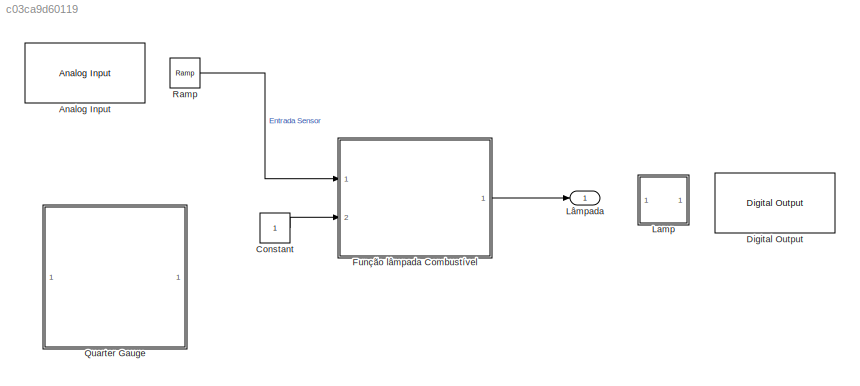
MODEL slx_c03ca9d60119
KIND model
CONFIG AbsTol = auto
CONFIG FixedStep = auto
CONFIG MaxStep = auto
CONFIG MinStep = auto
CONFIG RelTol = 1e-3
CONFIG SampleTimeConstraint = Unconstrained
CONFIG Solver = ode45
CONFIG SolverMode = Auto
CONFIG SolverName = ode45
CONFIG StartTime = 0.0
CONFIG StopTime = 10.0
BLOCK [Reference] Analog Input  REF=arduinolib/Analog Input
  Commented = on
  Ports = [0, 1]
  SourceBlock = arduinolib/Analog Input
  SourceType = Arduino Analog Input
  blockPlatform = arduino
  pinNumber = 0
  sampleTime = 1
BLOCK [Constant] Constant
BLOCK [Reference] Digital Output  REF=arduinolib/Digital Output
  Commented = on
  Ports = [1]
  SourceBlock = arduinolib/Digital Output
  SourceType = Arduino Digital Output
  blockPlatform = arduino
  pinNumber = 9
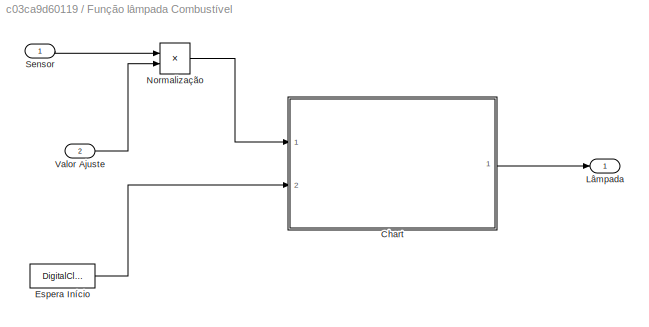
BLOCK [SubSystem] Função lâmpada Combustível
  Ports = [2, 1]
  RequestExecContextInheritance = off
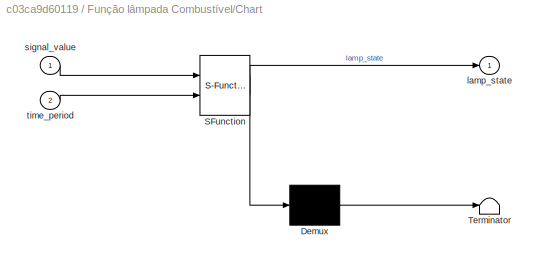
BLOCK [SubSystem] Função lâmpada Combustível/Chart
  ErrorFcn = Stateflow.Translate.translate
  PermitHierarchicalResolution = ExplicitOnly
  Ports = [2, 1]
  RequestExecContextInheritance = off
  SFBlockType = Chart
  TreatAsAtomicUnit = on
BLOCK [Demux] Função lâmpada Combustível/Chart/ Demux 
  Outputs = 1
  Ports = [1, 1]
BLOCK [S-Function] Função lâmpada Combustível/Chart/ SFunction 
  EnableBusSupport = on
  FunctionName = sf_sfun
  PortCounts = [2 2]
  Ports = [2, 2]
  Tag = Stateflow S-Function exercicio1 3
BLOCK [Terminator] Função lâmpada Combustível/Chart/ Terminator 
BLOCK [Outport] Função lâmpada Combustível/Chart/lamp_state
  IconDisplay = Port number
BLOCK [Inport] Função lâmpada Combustível/Chart/signal_value
  IconDisplay = Port number
BLOCK [Inport] Função lâmpada Combustível/Chart/time_period
  IconDisplay = Port number
  Port = 2
BLOCK [DigitalClock] Função lâmpada Combustível/Espera Início
BLOCK [Outport] Função lâmpada Combustível/Lâmpada
  IconDisplay = Port number
BLOCK [Product] Função lâmpada Combustível/Normalização
  InputSameDT = off
  OutDataTypeStr = Inherit: Inherit via internal rule
  Ports = [2, 1]
  RndMeth = Floor
  SaturateOnIntegerOverflow = off
BLOCK [Inport] Função lâmpada Combustível/Sensor
  IconDisplay = Port number
BLOCK [Inport] Função lâmpada Combustível/Valor Ajuste
  IconDisplay = Port number
  Port = 2
BLOCK [SubSystem] Lamp
  DialogController = hmiCreateDDGDialog
  IsWebBlock = on
  MaskHideContents = on
  Ports = []
  RequestExecContextInheritance = off
BLOCK [Outport] Lâmpada
  IconDisplay = Port number
BLOCK [SubSystem] Quarter Gauge
  DialogController = hmiCreateDDGDialog
  IsWebBlock = on
  MaskHideContents = on
  Ports = []
  RequestExecContextInheritance = off
BLOCK [Reference] Ramp  REF=simulink/Sources/Ramp
  Ports = [0, 1]
  SourceBlock = simulink/Sources/Ramp
  SourceType = Ramp
  VectorParams1D = on
  X0 = 0
  slope = 1
  start = 0
LINE Constant:1 -> Função lâmpada Combustível:2
LINE Função lâmpada Combustível/Chart:1 -> Função lâmpada Combustível/Lâmpada:1
LINE Função lâmpada Combustível/Espera Início:1 -> Função lâmpada Combustível/Chart:2
LINE Função lâmpada Combustível/Normalização:1 -> Função lâmpada Combustível/Chart:1
LINE Função lâmpada Combustível/Sensor:1 -> Função lâmpada Combustível/Normalização:1
LINE Função lâmpada Combustível/Valor Ajuste:1 -> Função lâmpada Combustível/Normalização:2
LINE Função lâmpada Combustível:1 -> Lâmpada:1
LINE Ramp:1 -> Função lâmpada Combustível:1
CHART Função lâmpada Combustível/Chart states=3 transitions=4
  STATE_LABEL 'Function_Check\nentry: lamp_state = 0;'
  STATE_LABEL 'Lamp_On\nentry: lamp_state = 1;'
  STATE_LABEL 'Lamp_Off\nentry: lamp_state = 0;'
